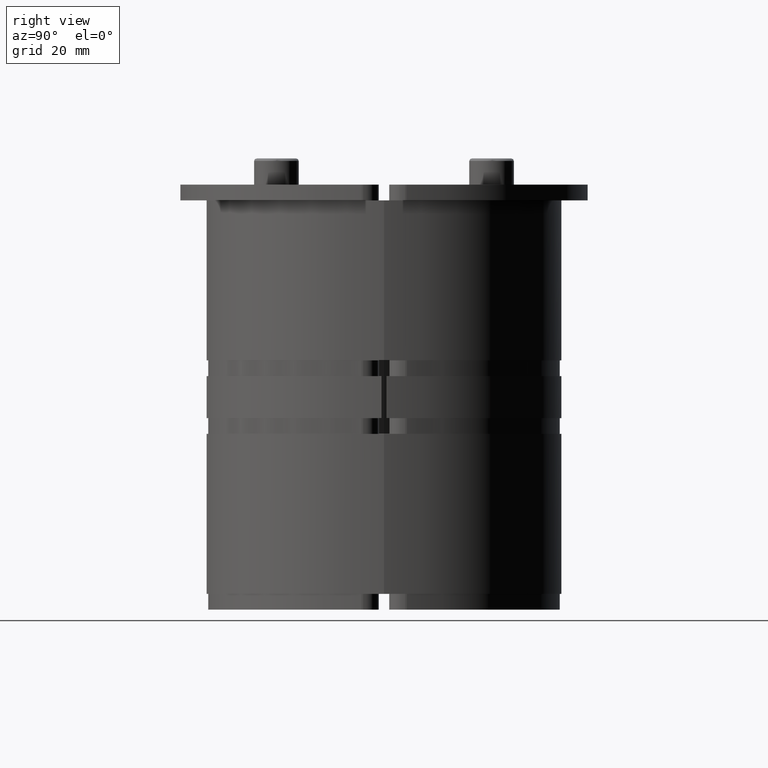
[diagram: clean part render]
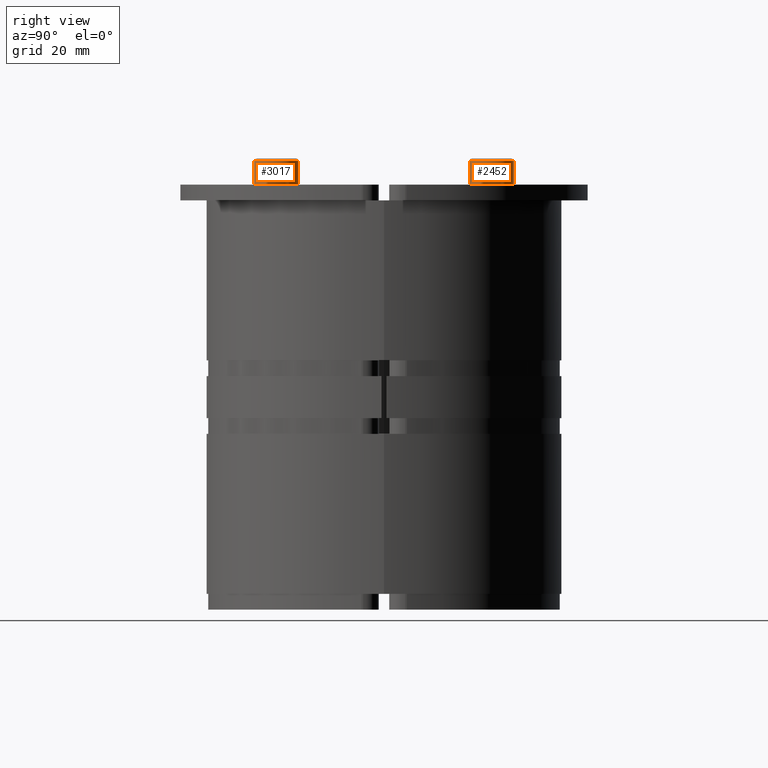
[diagram: same view with one multi-face feature highlighted, each face labeled with its STEP entity id]
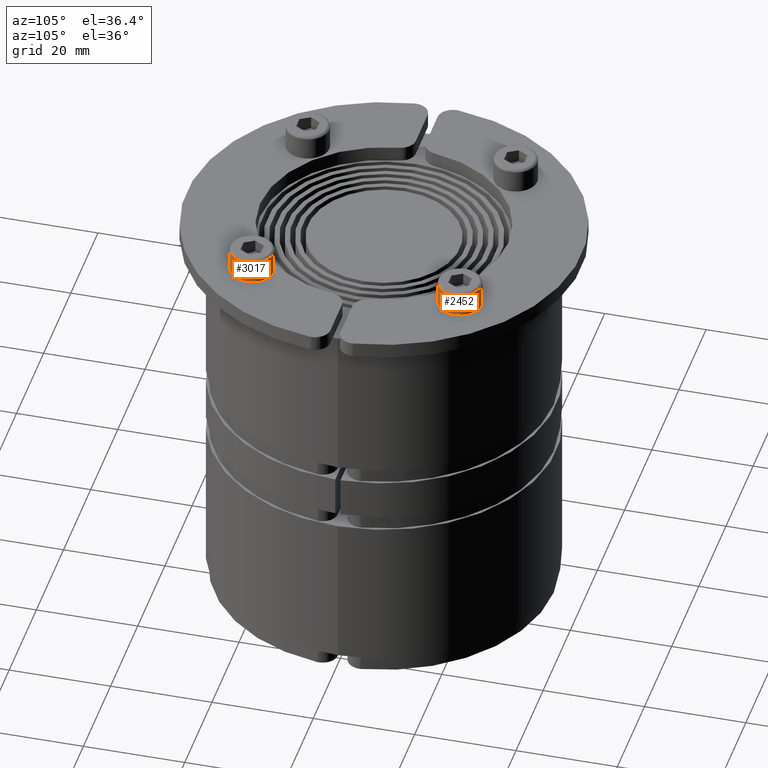
[diagram: same view with one multi-face feature highlighted, each face labeled with its STEP entity id]
A machine part, right view. The highlighted faces form ONE feature: a constant-radius fillet chain: 2 tangent blend faces with common blend radius 4.25 mm. The faces share edges in the B-rep.
A second angle (auxiliary view) of the same feature is appended — it is thin or edge-on in the first view.
Their STEP definitions:
[1] entity #3017 (Cylinder):
#2407=CARTESIAN_POINT('',(2.842171E-014,4.250000000000000,0.0));
#2408=VERTEX_POINT('',#2407);
#2409=CARTESIAN_POINT('',(-4.500000000000085,4.250000000000227,0.0));
#2410=VERTEX_POINT('',#2409);
#2411=CARTESIAN_POINT('',(2.842171E-014,4.250000000000000,0.0));
#2412=DIRECTION('',(-1.0,0.0,0.0));
#2413=VECTOR('',#2412,4.500000000000114);
#2414=LINE('',#2411,#2413);
#2415=EDGE_CURVE('',#2408,#2410,#2414,.T.);
#2417=CARTESIAN_POINT('',(2.842171E-014,-4.250000000000000,-5.204577E-016));
#2418=VERTEX_POINT('',#2417);
#2426=CARTESIAN_POINT('',(-4.500000000000085,-4.250000000000000,-5.204577E-016));
#2427=VERTEX_POINT('',#2426);
#2428=CARTESIAN_POINT('',(-4.500000000000085,-4.250000000000000,-5.204577E-016));
#2429=DIRECTION('',(1.0,0.0,0.0));
#2430=VECTOR('',#2429,4.500000000000114);
#2431=LINE('',#2428,#2430);
#2432=EDGE_CURVE('',#2427,#2418,#2431,.T.);
#2516=CARTESIAN_POINT('',(-4.500000000000085,-5.204577E-016,4.250000000000000));
#2517=VERTEX_POINT('',#2516);
#2518=CARTESIAN_POINT('',(-4.500000000000085,0.0,0.0));
#2519=DIRECTION('',(-1.0,0.0,0.0));
#2520=DIRECTION('',(0.0,1.0,0.0));
#2521=AXIS2_PLACEMENT_3D('',#2518,#2519,#2520);
#2522=CIRCLE('',#2521,4.250000000000000);
#2523=EDGE_CURVE('',#2427,#2517,#2522,.T.);
#2988=CARTESIAN_POINT('',(-4.500000000000085,0.0,0.0));
#2989=DIRECTION('',(-1.0,0.0,0.0));
#2990=DIRECTION('',(0.0,1.0,0.0));
#2991=AXIS2_PLACEMENT_3D('',#2988,#2989,#2990);
#2992=CIRCLE('',#2991,4.250000000000000);
#2993=EDGE_CURVE('',#2517,#2410,#2992,.T.);
#2999=CARTESIAN_POINT('',(-2.500000000000000,-7.105427E-015,0.0));
#3000=DIRECTION('',(-1.0,0.0,0.0));
#3001=DIRECTION('',(0.0,1.0,0.0));
#3002=AXIS2_PLACEMENT_3D('',#2999,#3000,#3001);
#3003=CYLINDRICAL_SURFACE('',#3002,4.250000000000000);
#3004=ORIENTED_EDGE('',*,*,#2415,.T.);
#3005=ORIENTED_EDGE('',*,*,#2993,.F.);
#3006=ORIENTED_EDGE('',*,*,#2523,.F.);
#3007=ORIENTED_EDGE('',*,*,#2432,.T.);
#3008=CARTESIAN_POINT('',(2.842171E-014,0.0,0.0));
#3009=DIRECTION('',(-1.0,0.0,0.0));
#3010=DIRECTION('',(0.0,1.0,0.0));
#3011=AXIS2_PLACEMENT_3D('',#3008,#3009,#3010);
#3012=CIRCLE('',#3011,4.250000000000000);
#3013=EDGE_CURVE('',#2418,#2408,#3012,.T.);
#3014=ORIENTED_EDGE('',*,*,#3013,.T.);
#3015=EDGE_LOOP('',(#3004,#3005,#3006,#3007,#3014));
#3016=FACE_OUTER_BOUND('',#3015,.T.);
#3017=ADVANCED_FACE('',(#3016),#3003,.T.);
[2] entity #2452 (Cylinder):
#2402=CARTESIAN_POINT('',(-2.500000000000000,-7.105427E-015,0.0));
#2403=DIRECTION('',(-1.0,0.0,0.0));
#2404=DIRECTION('',(0.0,1.0,0.0));
#2405=AXIS2_PLACEMENT_3D('',#2402,#2403,#2404);
#2406=CYLINDRICAL_SURFACE('',#2405,4.250000000000000);
#2407=CARTESIAN_POINT('',(2.842171E-014,4.250000000000000,0.0));
#2408=VERTEX_POINT('',#2407);
#2409=CARTESIAN_POINT('',(-4.500000000000085,4.250000000000227,0.0));
#2410=VERTEX_POINT('',#2409);
#2411=CARTESIAN_POINT('',(2.842171E-014,4.250000000000000,0.0));
#2412=DIRECTION('',(-1.0,0.0,0.0));
#2413=VECTOR('',#2412,4.500000000000114);
#2414=LINE('',#2411,#2413);
#2415=EDGE_CURVE('',#2408,#2410,#2414,.T.);
#2416=ORIENTED_EDGE('',*,*,#2415,.F.);
#2417=CARTESIAN_POINT('',(2.842171E-014,-4.250000000000000,-5.204577E-016));
#2418=VERTEX_POINT('',#2417);
#2419=CARTESIAN_POINT('',(2.842171E-014,0.0,0.0));
#2420=DIRECTION('',(-1.0,0.0,0.0));
#2421=DIRECTION('',(0.0,1.0,0.0));
#2422=AXIS2_PLACEMENT_3D('',#2419,#2420,#2421);
#2423=CIRCLE('',#2422,4.250000000000000);
#2424=EDGE_CURVE('',#2408,#2418,#2423,.T.);
#2425=ORIENTED_EDGE('',*,*,#2424,.T.);
#2426=CARTESIAN_POINT('',(-4.500000000000085,-4.250000000000000,-5.204577E-016));
#2427=VERTEX_POINT('',#2426);
#2428=CARTESIAN_POINT('',(-4.500000000000085,-4.250000000000000,-5.204577E-016));
#2429=DIRECTION('',(1.0,0.0,0.0));
#2430=VECTOR('',#2429,4.500000000000114);
#2431=LINE('',#2428,#2430);
#2432=EDGE_CURVE('',#2427,#2418,#2431,.T.);
#2433=ORIENTED_EDGE('',*,*,#2432,.F.);
#2434=CARTESIAN_POINT('',(-4.500000000000085,5.204577E-016,-4.250000000000000));
#2435=VERTEX_POINT('',#2434);
#2436=CARTESIAN_POINT('',(-4.500000000000085,0.0,0.0));
#2437=DIRECTION('',(-1.0,0.0,0.0));
#2438=DIRECTION('',(0.0,1.0,0.0));
#2439=AXIS2_PLACEMENT_3D('',#2436,#2437,#2438);
#2440=CIRCLE('',#2439,4.250000000000000);
#2441=EDGE_CURVE('',#2435,#2427,#2440,.T.);
#2442=ORIENTED_EDGE('',*,*,#2441,.F.);
#2443=CARTESIAN_POINT('',(-4.500000000000085,0.0,0.0));
#2444=DIRECTION('',(-1.0,0.0,0.0));
#2445=DIRECTION('',(0.0,1.0,0.0));
#2446=AXIS2_PLACEMENT_3D('',#2443,#2444,#2445);
#2447=CIRCLE('',#2446,4.250000000000000);
#2448=EDGE_CURVE('',#2410,#2435,#2447,.T.);
#2449=ORIENTED_EDGE('',*,*,#2448,.F.);
#2450=EDGE_LOOP('',(#2416,#2425,#2433,#2442,#2449));
#2451=FACE_OUTER_BOUND('',#2450,.T.);
#2452=ADVANCED_FACE('',(#2451),#2406,.T.);